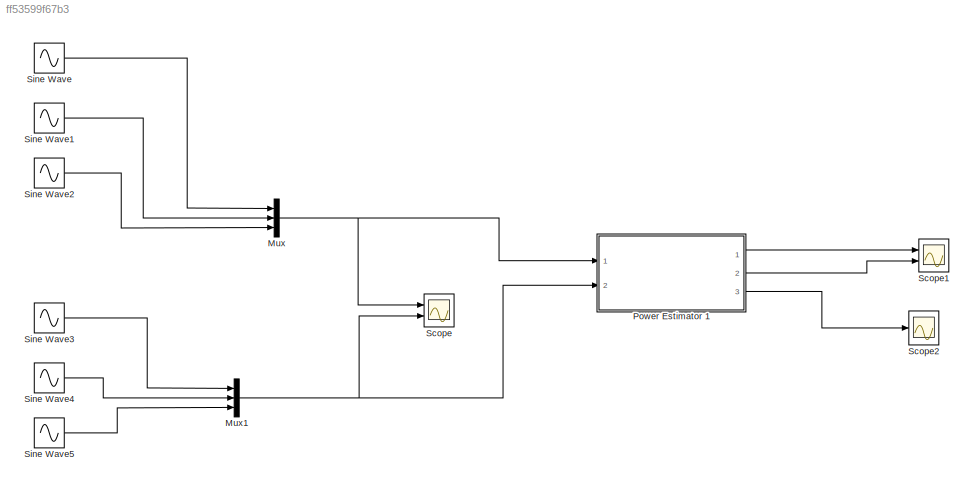
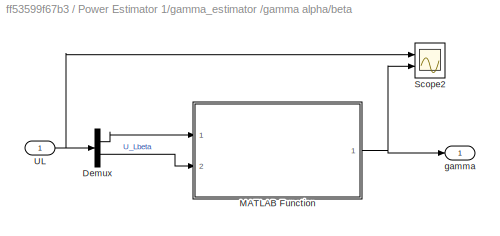
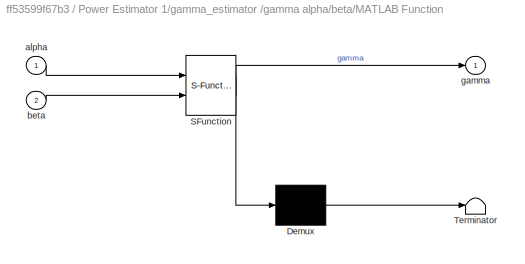
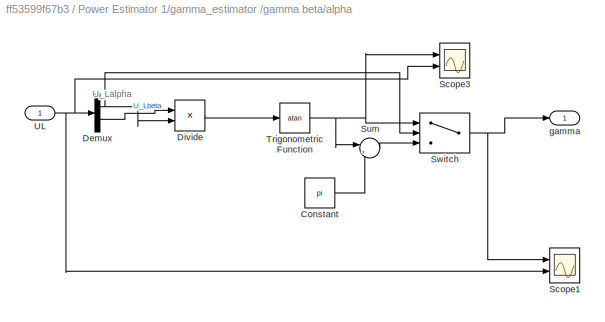
MODEL slx_ff53599f67b3
KIND model
CONFIG AbsTol = auto
CONFIG FixedStep = Ts/10
CONFIG MaxStep = auto
CONFIG MinStep = auto
CONFIG RelTol = 1e-3
CONFIG SampleTimeConstraint = Unconstrained
CONFIG Solver = ode3
CONFIG SolverMode = Auto
CONFIG SolverName = ode3
CONFIG StartTime = 0.0
CONFIG StopTime = 3
BLOCK [Mux] Mux
  DisplayOption = bar
  Inputs = 3
  Ports = [3, 1]
BLOCK [Mux] Mux1
  DisplayOption = bar
  Inputs = 3
  Ports = [3, 1]
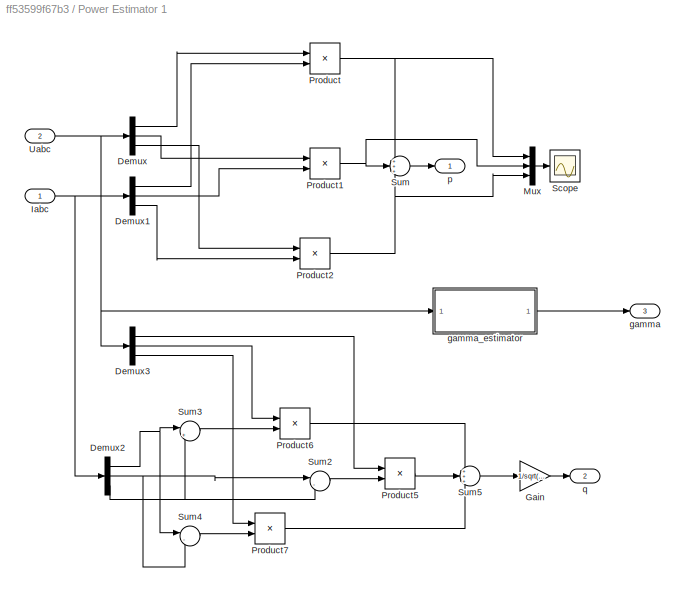
BLOCK [SubSystem] Power Estimator 1
  Ports = [2, 3]
  RequestExecContextInheritance = off
BLOCK [Demux] Power Estimator 1/Demux
  DisplayOption = bar
  Outputs = 3
  Ports = [1, 3]
BLOCK [Demux] Power Estimator 1/Demux1
  DisplayOption = bar
  Outputs = 3
  Ports = [1, 3]
BLOCK [Demux] Power Estimator 1/Demux2
  DisplayOption = bar
  Outputs = 3
  Ports = [1, 3]
BLOCK [Demux] Power Estimator 1/Demux3
  DisplayOption = bar
  Outputs = 3
  Ports = [1, 3]
BLOCK [Gain] Power Estimator 1/Gain
  Gain = 1/sqrt(3)
  OutDataTypeStr = Inherit: Inherit via internal rule
  ParamDataTypeStr = Inherit: Inherit via internal rule
  SaturateOnIntegerOverflow = off
BLOCK [Inport] Power Estimator 1/Iabc 
  IconDisplay = Port number
BLOCK [Mux] Power Estimator 1/Mux
  DisplayOption = bar
  Inputs = 3
  Ports = [3, 1]
BLOCK [Product] Power Estimator 1/Product
  InputSameDT = off
  OutDataTypeStr = Inherit: Inherit via internal rule
  Ports = [2, 1]
  RndMeth = Floor
  SaturateOnIntegerOverflow = off
BLOCK [Product] Power Estimator 1/Product1
  InputSameDT = off
  OutDataTypeStr = Inherit: Inherit via internal rule
  Ports = [2, 1]
  RndMeth = Floor
  SaturateOnIntegerOverflow = off
BLOCK [Product] Power Estimator 1/Product2
  InputSameDT = off
  OutDataTypeStr = Inherit: Inherit via internal rule
  Ports = [2, 1]
  RndMeth = Floor
  SaturateOnIntegerOverflow = off
BLOCK [Product] Power Estimator 1/Product5
  InputSameDT = off
  OutDataTypeStr = Inherit: Inherit via internal rule
  Ports = [2, 1]
  RndMeth = Floor
  SaturateOnIntegerOverflow = off
BLOCK [Product] Power Estimator 1/Product6
  InputSameDT = off
  OutDataTypeStr = Inherit: Inherit via internal rule
  Ports = [2, 1]
  RndMeth = Floor
  SaturateOnIntegerOverflow = off
BLOCK [Product] Power Estimator 1/Product7
  InputSameDT = off
  OutDataTypeStr = Inherit: Inherit via internal rule
  Ports = [2, 1]
  RndMeth = Floor
  SaturateOnIntegerOverflow = off
BLOCK [Scope] Power Estimator 1/Scope
  Floating = off
  LimitDataPoints = off
  NumInputPorts = 1
  Ports = [1]
  SaveName = ScopeData5
  ZoomMode = xonly
BLOCK [Sum] Power Estimator 1/Sum
  IconShape = round
  InputSameDT = off
  Inputs = +++
  OutDataTypeStr = Inherit: Inherit via internal rule
  Ports = [3, 1]
  SaturateOnIntegerOverflow = off
BLOCK [Sum] Power Estimator 1/Sum2
  IconShape = round
  InputSameDT = off
  Inputs = |-+
  OutDataTypeStr = Inherit: Inherit via internal rule
  Ports = [2, 1]
  SaturateOnIntegerOverflow = off
BLOCK [Sum] Power Estimator 1/Sum3
  IconShape = round
  InputSameDT = off
  Inputs = |+-
  OutDataTypeStr = Inherit: Inherit via internal rule
  Ports = [2, 1]
  SaturateOnIntegerOverflow = off
BLOCK [Sum] Power Estimator 1/Sum4
  IconShape = round
  InputSameDT = off
  Inputs = |-+
  OutDataTypeStr = Inherit: Inherit via internal rule
  Ports = [2, 1]
  SaturateOnIntegerOverflow = off
BLOCK [Sum] Power Estimator 1/Sum5
  IconShape = round
  InputSameDT = off
  Inputs = +++
  OutDataTypeStr = Inherit: Inherit via internal rule
  Ports = [3, 1]
  SaturateOnIntegerOverflow = off
BLOCK [Inport] Power Estimator 1/Uabc 
  IconDisplay = Port number
  Port = 2
BLOCK [Outport] Power Estimator 1/gamma
  IconDisplay = Port number
  Port = 3
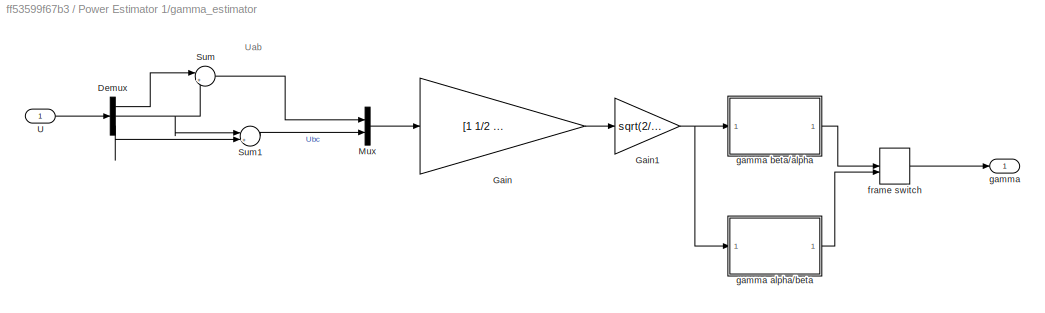
BLOCK [SubSystem] Power Estimator 1/gamma_estimator 
  Ports = [1, 1]
  RequestExecContextInheritance = off
BLOCK [Demux] Power Estimator 1/gamma_estimator /Demux
  DisplayOption = bar
  Outputs = 3
  Ports = [1, 3]
BLOCK [Gain] Power Estimator 1/gamma_estimator /Gain
  Gain = [1 1/2 ; 0 sqrt(3)/2]
  Multiplication = Matrix(K*u)
  OutDataTypeStr = Inherit: Inherit via internal rule
  ParamDataTypeStr = Inherit: Inherit via internal rule
  SaturateOnIntegerOverflow = off
BLOCK [Gain] Power Estimator 1/gamma_estimator /Gain1
  Gain = sqrt(2/3)
  OutDataTypeStr = Inherit: Inherit via internal rule
  ParamDataTypeStr = Inherit: Inherit via internal rule
  SaturateOnIntegerOverflow = off
BLOCK [Mux] Power Estimator 1/gamma_estimator /Mux
  DisplayOption = bar
  Inputs = 2
  Ports = [2, 1]
BLOCK [Sum] Power Estimator 1/gamma_estimator /Sum
  IconShape = round
  InputSameDT = off
  Inputs = |+-
  OutDataTypeStr = Inherit: Inherit via internal rule
  Ports = [2, 1]
  SaturateOnIntegerOverflow = off
BLOCK [Sum] Power Estimator 1/gamma_estimator /Sum1
  IconShape = round
  InputSameDT = off
  Inputs = |+-
  OutDataTypeStr = Inherit: Inherit via internal rule
  Ports = [2, 1]
  SaturateOnIntegerOverflow = off
BLOCK [Inport] Power Estimator 1/gamma_estimator /U
  IconDisplay = Port number
BLOCK [ManualSwitch] Power Estimator 1/gamma_estimator /frame switch
  CurrentSetting = 0
BLOCK [Outport] Power Estimator 1/gamma_estimator /gamma
  IconDisplay = Port number
BLOCK [SubSystem] Power Estimator 1/gamma_estimator /gamma alpha//beta
  Ports = [1, 1]
  RequestExecContextInheritance = off
BLOCK [Demux] Power Estimator 1/gamma_estimator /gamma alpha//beta/Demux
  DisplayOption = bar
  Outputs = 2
  Ports = [1, 2]
BLOCK [SubSystem] Power Estimator 1/gamma_estimator /gamma alpha//beta/MATLAB Function
  ErrorFcn = Stateflow.Translate.translate
  PermitHierarchicalResolution = ExplicitOnly
  Ports = [2, 1]
  RequestExecContextInheritance = off
  SFBlockType = MATLAB Function
  TreatAsAtomicUnit = on
BLOCK [Demux] Power Estimator 1/gamma_estimator /gamma alpha//beta/MATLAB Function/ Demux 
  Outputs = 1
  Ports = [1, 1]
BLOCK [S-Function] Power Estimator 1/gamma_estimator /gamma alpha//beta/MATLAB Function/ SFunction 
  EnableBusSupport = on
  FunctionName = sf_sfun
  PortCounts = [2 2]
  Ports = [2, 2]
  Tag = Stateflow S-Function Perfect_power_estimator 4
BLOCK [Terminator] Power Estimator 1/gamma_estimator /gamma alpha//beta/MATLAB Function/ Terminator 
BLOCK [Inport] Power Estimator 1/gamma_estimator /gamma alpha//beta/MATLAB Function/alpha
  IconDisplay = Port number
BLOCK [Inport] Power Estimator 1/gamma_estimator /gamma alpha//beta/MATLAB Function/beta
  IconDisplay = Port number
  Port = 2
BLOCK [Outport] Power Estimator 1/gamma_estimator /gamma alpha//beta/MATLAB Function/gamma
  IconDisplay = Port number
BLOCK [Scope] Power Estimator 1/gamma_estimator /gamma alpha//beta/Scope2
  Floating = off
  LimitDataPoints = off
  NumInputPorts = 2
  Ports = [2]
  SaveName = ScopeData15
  TimeRange = 10
  YMax = 1.75~300
  YMin = -1.75~-500
  ZoomMode = xonly
BLOCK [Inport] Power Estimator 1/gamma_estimator /gamma alpha//beta/UL
  IconDisplay = Port number
BLOCK [Outport] Power Estimator 1/gamma_estimator /gamma alpha//beta/gamma
  IconDisplay = Port number
BLOCK [SubSystem] Power Estimator 1/gamma_estimator /gamma beta//alpha
  Ports = [1, 1]
  RequestExecContextInheritance = off
BLOCK [Constant] Power Estimator 1/gamma_estimator /gamma beta//alpha/Constant
  Value = pi
BLOCK [Demux] Power Estimator 1/gamma_estimator /gamma beta//alpha/Demux
  DisplayOption = bar
  Outputs = 2
  Ports = [1, 2]
BLOCK [Product] Power Estimator 1/gamma_estimator /gamma beta//alpha/Divide
  InputSameDT = off
  Inputs = */
  OutDataTypeStr = Inherit: Inherit via internal rule
  Ports = [2, 1]
  RndMeth = Floor
  SaturateOnIntegerOverflow = off
BLOCK [Scope] Power Estimator 1/gamma_estimator /gamma beta//alpha/Scope1
  Floating = off
  LimitDataPoints = off
  NumInputPorts = 2
  Ports = [2]
  SaveName = ScopeData3
  ShowLegends = on
  YMax = 5~2
  YMin = -2~-1.25
  ZoomMode = xonly
BLOCK [Scope] Power Estimator 1/gamma_estimator /gamma beta//alpha/Scope3
  Floating = off
  LimitDataPoints = off
  NumInputPorts = 2
  Ports = [2]
  SaveName = ScopeData2
  YMax = 1.75~300
  YMin = -1.75~-500
  ZoomMode = xonly
BLOCK [Sum] Power Estimator 1/gamma_estimator /gamma beta//alpha/Sum
  IconShape = round
  InputSameDT = off
  Inputs = |++
  OutDataTypeStr = Inherit: Inherit via internal rule
  Ports = [2, 1]
  SaturateOnIntegerOverflow = off
BLOCK [Switch] Power Estimator 1/gamma_estimator /gamma beta//alpha/Switch
  Criteria = u2 > Threshold
  InputSameDT = off
  SaturateOnIntegerOverflow = off
BLOCK [Trigonometry] Power Estimator 1/gamma_estimator /gamma beta//alpha/Trigonometric Function
  Operator = atan
  Ports = [1, 1]
BLOCK [Inport] Power Estimator 1/gamma_estimator /gamma beta//alpha/UL
  IconDisplay = Port number
BLOCK [Outport] Power Estimator 1/gamma_estimator /gamma beta//alpha/gamma
  IconDisplay = Port number
BLOCK [Outport] Power Estimator 1/p
  IconDisplay = Port number
BLOCK [Outport] Power Estimator 1/q
  IconDisplay = Port number
  Port = 2
BLOCK [Scope] Scope
  Floating = off
  LimitDataPoints = off
  NumInputPorts = 2
  Ports = [2]
  YMax = 5~5
  YMin = -5~-5
  ZoomMode = xonly
BLOCK [Scope] Scope1
  Floating = off
  LimitDataPoints = off
  NumInputPorts = 2
  Ports = [2]
  SaveName = ScopeData1
  YMax = 2~8e-17
  YMin = 0~-8e-17
BLOCK [Scope] Scope2
  Floating = off
  LimitDataPoints = off
  NumInputPorts = 1
  Ports = [1]
  SaveName = ScopeData4
  ZoomMode = xonly
BLOCK [Sin] Sine Wave
  Frequency = w
  Ports = [0, 1]
  SampleTime = 0
BLOCK [Sin] Sine Wave1
  Frequency = w
  Phase = -2*pi/3
  Ports = [0, 1]
  SampleTime = 0
BLOCK [Sin] Sine Wave2
  Frequency = w
  Phase = -4*pi/3
  Ports = [0, 1]
  SampleTime = 0
BLOCK [Sin] Sine Wave3
  Amplitude = 0.5
  Frequency = w
  Phase = pi/8
  Ports = [0, 1]
  SampleTime = 0
BLOCK [Sin] Sine Wave4
  Amplitude = 0.5
  Frequency = w
  Phase = -2*pi/3+pi/8
  Ports = [0, 1]
  SampleTime = 0
BLOCK [Sin] Sine Wave5
  Amplitude = 0.5
  Frequency = w
  Phase = -4*pi/3+pi/8
  Ports = [0, 1]
  SampleTime = 0
ANNOTATION Power Estimator 1/gamma_estimator : Uab
ANNOTATION Power Estimator 1/gamma_estimator /gamma beta//alpha: U_Lalpha
NET Mux1:1 -> Power Estimator 1:2, Scope:2
NET Mux:1 -> Power Estimator 1:1, Scope:1
LINE Power Estimator 1/Demux1:1 -> Power Estimator 1/Product:2
LINE Power Estimator 1/Demux1:2 -> Power Estimator 1/Product1:2
LINE Power Estimator 1/Demux1:3 -> Power Estimator 1/Product2:2
NET Power Estimator 1/Demux2:1 -> Power Estimator 1/Sum3:1, Power Estimator 1/Sum4:1
NET Power Estimator 1/Demux2:2 -> Power Estimator 1/Sum2:1, Power Estimator 1/Sum4:2
NET Power Estimator 1/Demux2:3 -> Power Estimator 1/Sum2:2, Power Estimator 1/Sum3:2
LINE Power Estimator 1/Demux3:1 -> Power Estimator 1/Product5:1
LINE Power Estimator 1/Demux3:2 -> Power Estimator 1/Product6:1
LINE Power Estimator 1/Demux3:3 -> Power Estimator 1/Product7:1
LINE Power Estimator 1/Demux:1 -> Power Estimator 1/Product:1
LINE Power Estimator 1/Demux:2 -> Power Estimator 1/Product1:1
LINE Power Estimator 1/Demux:3 -> Power Estimator 1/Product2:1
LINE Power Estimator 1/Gain:1 -> Power Estimator 1/q:1
NET Power Estimator 1/Iabc :1 -> Power Estimator 1/Demux1:1, Power Estimator 1/Demux2:1
LINE Power Estimator 1/Mux:1 -> Power Estimator 1/Scope:1
NET Power Estimator 1/Product1:1 -> Power Estimator 1/Mux:2, Power Estimator 1/Sum:2
NET Power Estimator 1/Product2:1 -> Power Estimator 1/Mux:3, Power Estimator 1/Sum:3
LINE Power Estimator 1/Product5:1 -> Power Estimator 1/Sum5:2
LINE Power Estimator 1/Product6:1 -> Power Estimator 1/Sum5:1
LINE Power Estimator 1/Product7:1 -> Power Estimator 1/Sum5:3
NET Power Estimator 1/Product:1 -> Power Estimator 1/Mux:1, Power Estimator 1/Sum:1
LINE Power Estimator 1/Sum2:1 -> Power Estimator 1/Product5:2
LINE Power Estimator 1/Sum3:1 -> Power Estimator 1/Product6:2
LINE Power Estimator 1/Sum4:1 -> Power Estimator 1/Product7:2
LINE Power Estimator 1/Sum5:1 -> Power Estimator 1/Gain:1
LINE Power Estimator 1/Sum:1 -> Power Estimator 1/p:1
NET Power Estimator 1/Uabc :1 -> Power Estimator 1/Demux3:1, Power Estimator 1/Demux:1, Power Estimator 1/gamma_estimator :1
LINE Power Estimator 1/gamma_estimator /Demux:1 -> Power Estimator 1/gamma_estimator /Sum:1
NET Power Estimator 1/gamma_estimator /Demux:2 -> Power Estimator 1/gamma_estimator /Sum1:1, Power Estimator 1/gamma_estimator /Sum:2
LINE Power Estimator 1/gamma_estimator /Demux:3 -> Power Estimator 1/gamma_estimator /Sum1:2
NET Power Estimator 1/gamma_estimator /Gain1:1 -> Power Estimator 1/gamma_estimator /gamma alpha//beta:1, Power Estimator 1/gamma_estimator /gamma beta//alpha:1
LINE Power Estimator 1/gamma_estimator /Gain:1 -> Power Estimator 1/gamma_estimator /Gain1:1
LINE Power Estimator 1/gamma_estimator /Mux:1 -> Power Estimator 1/gamma_estimator /Gain:1
LINE Power Estimator 1/gamma_estimator /Sum1:1 -> Power Estimator 1/gamma_estimator /Mux:2
LINE Power Estimator 1/gamma_estimator /Sum:1 -> Power Estimator 1/gamma_estimator /Mux:1
LINE Power Estimator 1/gamma_estimator /U:1 -> Power Estimator 1/gamma_estimator /Demux:1
LINE Power Estimator 1/gamma_estimator /frame switch:1 -> Power Estimator 1/gamma_estimator /gamma:1
LINE Power Estimator 1/gamma_estimator /gamma alpha//beta/Demux:1 -> Power Estimator 1/gamma_estimator /gamma alpha//beta/MATLAB Function:1
LINE Power Estimator 1/gamma_estimator /gamma alpha//beta/Demux:2 -> Power Estimator 1/gamma_estimator /gamma alpha//beta/MATLAB Function:2
NET Power Estimator 1/gamma_estimator /gamma alpha//beta/MATLAB Function:1 -> Power Estimator 1/gamma_estimator /gamma alpha//beta/Scope2:2, Power Estimator 1/gamma_estimator /gamma alpha//beta/gamma:1
NET Power Estimator 1/gamma_estimator /gamma alpha//beta/UL:1 -> Power Estimator 1/gamma_estimator /gamma alpha//beta/Demux:1, Power Estimator 1/gamma_estimator /gamma alpha//beta/Scope2:1
LINE Power Estimator 1/gamma_estimator /gamma alpha//beta:1 -> Power Estimator 1/gamma_estimator /frame switch:2
LINE Power Estimator 1/gamma_estimator /gamma beta//alpha/Constant:1 -> Power Estimator 1/gamma_estimator /gamma beta//alpha/Sum:2
NET Power Estimator 1/gamma_estimator /gamma beta//alpha/Demux:1 -> Power Estimator 1/gamma_estimator /gamma beta//alpha/Divide:2, Power Estimator 1/gamma_estimator /gamma beta//alpha/Switch:2
LINE Power Estimator 1/gamma_estimator /gamma beta//alpha/Demux:2 -> Power Estimator 1/gamma_estimator /gamma beta//alpha/Divide:1
LINE Power Estimator 1/gamma_estimator /gamma beta//alpha/Divide:1 -> Power Estimator 1/gamma_estimator /gamma beta//alpha/Trigonometric Function:1
LINE Power Estimator 1/gamma_estimator /gamma beta//alpha/Sum:1 -> Power Estimator 1/gamma_estimator /gamma beta//alpha/Switch:3
NET Power Estimator 1/gamma_estimator /gamma beta//alpha/Switch:1 -> Power Estimator 1/gamma_estimator /gamma beta//alpha/Scope1:1, Power Estimator 1/gamma_estimator /gamma beta//alpha/gamma:1
NET Power Estimator 1/gamma_estimator /gamma beta//alpha/Trigonometric Function:1 -> Power Estimator 1/gamma_estimator /gamma beta//alpha/Scope3:1, Power Estimator 1/gamma_estimator /gamma beta//alpha/Sum:1, Power Estimator 1/gamma_estimator /gamma beta//alpha/Switch:1
NET Power Estimator 1/gamma_estimator /gamma beta//alpha/UL:1 -> Power Estimator 1/gamma_estimator /gamma beta//alpha/Demux:1, Power Estimator 1/gamma_estimator /gamma beta//alpha/Scope1:2, Power Estimator 1/gamma_estimator /gamma beta//alpha/Scope3:2
LINE Power Estimator 1/gamma_estimator /gamma beta//alpha:1 -> Power Estimator 1/gamma_estimator /frame switch:1
LINE Power Estimator 1/gamma_estimator :1 -> Power Estimator 1/gamma:1
LINE Power Estimator 1:1 -> Scope1:1
LINE Power Estimator 1:2 -> Scope1:2
LINE Power Estimator 1:3 -> Scope2:1
LINE Sine Wave1:1 -> Mux:2
LINE Sine Wave2:1 -> Mux:3
LINE Sine Wave3:1 -> Mux1:1
LINE Sine Wave4:1 -> Mux1:2
LINE Sine Wave5:1 -> Mux1:3
LINE Sine Wave:1 -> Mux:1
note: NET lines group one-source signal fan-out (src -> all destinations, sorted); 1:1 wires keep LINE
CHART Power Estimator
1/gamma_estimator /gamma alpha//beta/MATLAB Function states=1 transitions=1
  STATE_LABEL 'eML_blk_kernel()'
  STATE_LABEL 'SCRIPT:\nfunction gamma = gamma_estimator(alpha,beta)\n%#codegen\n\ngamma = 0 ; \ngamma = atan(beta/alpha) ; \n\nif (alpha<0 )\n    gamma = gamma +pi ; \nend \n\nif (beta<0 && alpha> 0 ) \n    gamma = gamma +2*pi ; \nend \n\n'
